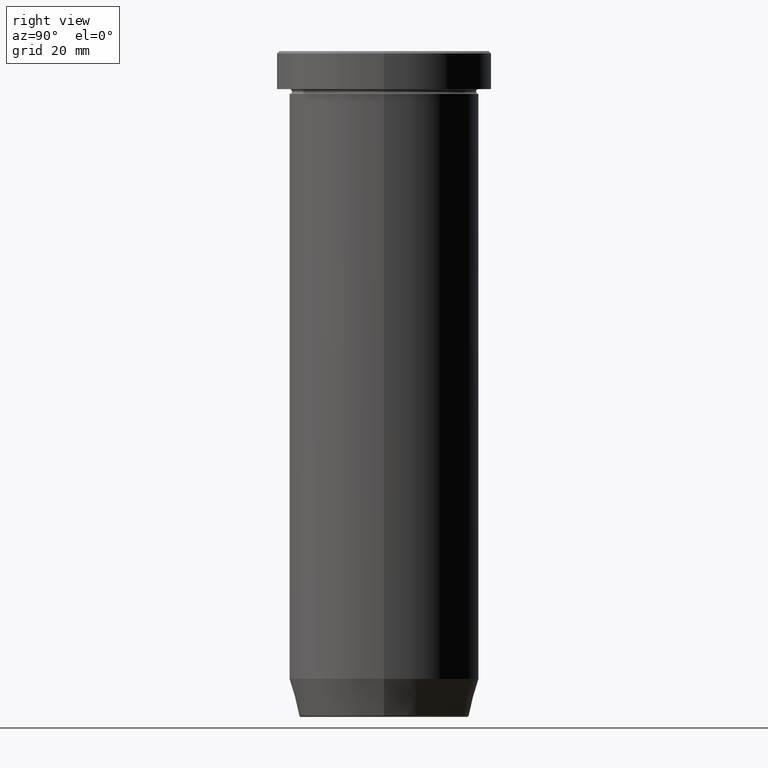
[diagram: clean part render]
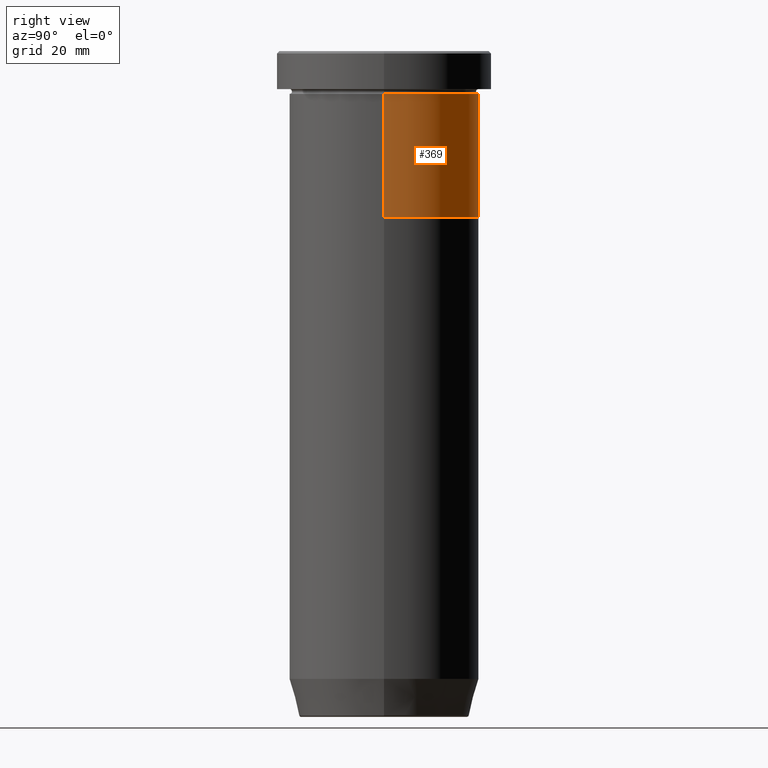
[diagram: same view with one face highlighted and labeled with its STEP entity id]
A machine part, right view. The second image highlights one B-rep face of the part: STEP entity #369.
In plain terms, the highlighted cylindrical surface (partial cylindrical patch) has radius 20 mm, axis along (-0, -0, 1).
Its self-contained STEP definition (entity closure, byte-faithful):
#1 = DIRECTION ( 'NONE',  ( -0.000000000000000000, -0.000000000000000000, 1.000000000000000000 ) ) ;
#10 = EDGE_CURVE ( 'NONE', #368, #412, #303, .T. ) ;
#33 = VECTOR ( 'NONE', #473, 1000.000000000000000 ) ;
#100 = EDGE_CURVE ( 'NONE', #344, #412, #153, .T. ) ;
#112 = CARTESIAN_POINT ( 'NONE',  ( 20.00000000000000000, 0.000000000000000000, -35.00000000000000000 ) ) ;
#118 = AXIS2_PLACEMENT_3D ( 'NONE', #266, #411, #453 ) ;
#139 = CIRCLE ( 'NONE', #118, 20.00000000000000000 ) ;
#153 = LINE ( 'NONE', #329, #33 ) ;
#170 = CARTESIAN_POINT ( 'NONE',  ( 20.00000000000000000, 0.000000000000000000, 0.000000000000000000 ) ) ;
#172 = DIRECTION ( 'NONE',  ( -0.000000000000000000, -0.000000000000000000, 1.000000000000000000 ) ) ;
#239 = CARTESIAN_POINT ( 'NONE',  ( 20.00000000000000000, 0.000000000000000000, -8.999999999999998224 ) ) ;
#266 = CARTESIAN_POINT ( 'NONE',  ( 0.000000000000000000, 0.000000000000000000, -35.00000000000000000 ) ) ;
#276 = ORIENTED_EDGE ( 'NONE', *, *, #401, .T. ) ;
#278 = VECTOR ( 'NONE', #172, 1000.000000000000000 ) ;
#288 = AXIS2_PLACEMENT_3D ( 'NONE', #359, #1, #463 ) ;
#303 = CIRCLE ( 'NONE', #365, 20.00000000000000000 ) ;
#326 = EDGE_CURVE ( 'NONE', #542, #368, #582, .T. ) ;
#329 = CARTESIAN_POINT ( 'NONE',  ( -20.00000000000000000, 2.449293598294706513E-15, 0.000000000000000000 ) ) ;
#344 = VERTEX_POINT ( 'NONE', #405 ) ;
#359 = CARTESIAN_POINT ( 'NONE',  ( 0.000000000000000000, 0.000000000000000000, 0.000000000000000000 ) ) ;
#365 = AXIS2_PLACEMENT_3D ( 'NONE', #520, #423, #571 ) ;
#368 = VERTEX_POINT ( 'NONE', #239 ) ;
#369 = ADVANCED_FACE ( 'NONE', ( #596 ), #517, .T. ) ;
#396 = EDGE_LOOP ( 'NONE', ( #276, #552, #448, #565 ) ) ;
#401 = EDGE_CURVE ( 'NONE', #542, #344, #139, .T. ) ;
#405 = CARTESIAN_POINT ( 'NONE',  ( -20.00000000000000000, 2.449293598294706513E-15, -35.00000000000000000 ) ) ;
#411 = DIRECTION ( 'NONE',  ( -0.000000000000000000, -0.000000000000000000, 1.000000000000000000 ) ) ;
#412 = VERTEX_POINT ( 'NONE', #413 ) ;
#413 = CARTESIAN_POINT ( 'NONE',  ( -20.00000000000000000, 2.449293598294706513E-15, -8.999999999999998224 ) ) ;
#423 = DIRECTION ( 'NONE',  ( -0.000000000000000000, -0.000000000000000000, 1.000000000000000000 ) ) ;
#448 = ORIENTED_EDGE ( 'NONE', *, *, #10, .F. ) ;
#453 = DIRECTION ( 'NONE',  ( 1.000000000000000000, 0.000000000000000000, 0.000000000000000000 ) ) ;
#463 = DIRECTION ( 'NONE',  ( 1.000000000000000000, 0.000000000000000000, 0.000000000000000000 ) ) ;
#473 = DIRECTION ( 'NONE',  ( -0.000000000000000000, -0.000000000000000000, 1.000000000000000000 ) ) ;
#517 = CYLINDRICAL_SURFACE ( 'NONE', #288, 20.00000000000000000 ) ;
#520 = CARTESIAN_POINT ( 'NONE',  ( 0.000000000000000000, 0.000000000000000000, -8.999999999999998224 ) ) ;
#542 = VERTEX_POINT ( 'NONE', #112 ) ;
#552 = ORIENTED_EDGE ( 'NONE', *, *, #100, .T. ) ;
#565 = ORIENTED_EDGE ( 'NONE', *, *, #326, .F. ) ;
#571 = DIRECTION ( 'NONE',  ( 1.000000000000000000, 0.000000000000000000, 0.000000000000000000 ) ) ;
#582 = LINE ( 'NONE', #170, #278 ) ;
#596 = FACE_OUTER_BOUND ( 'NONE', #396, .T. ) ;